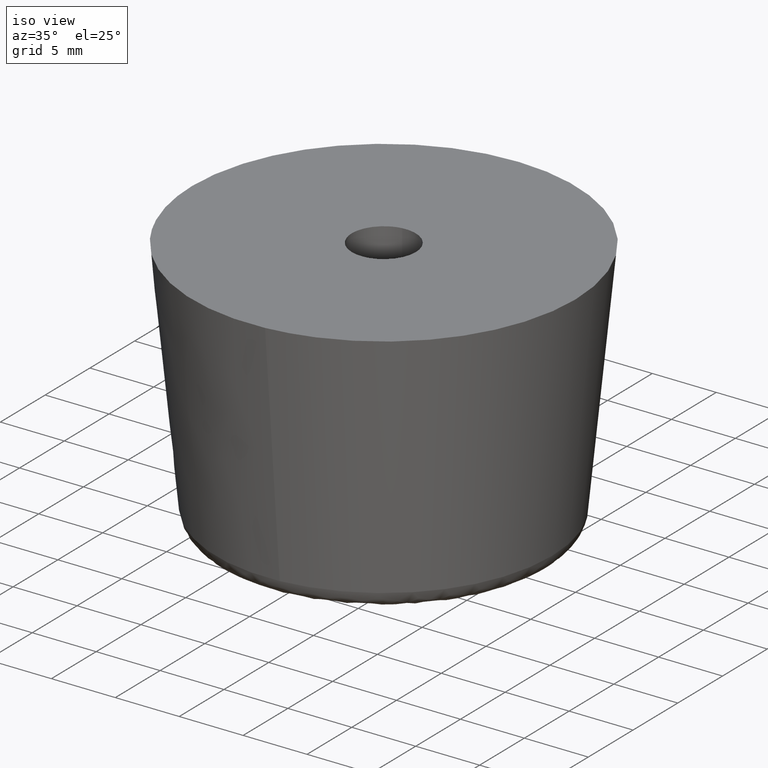
[diagram: clean part render]
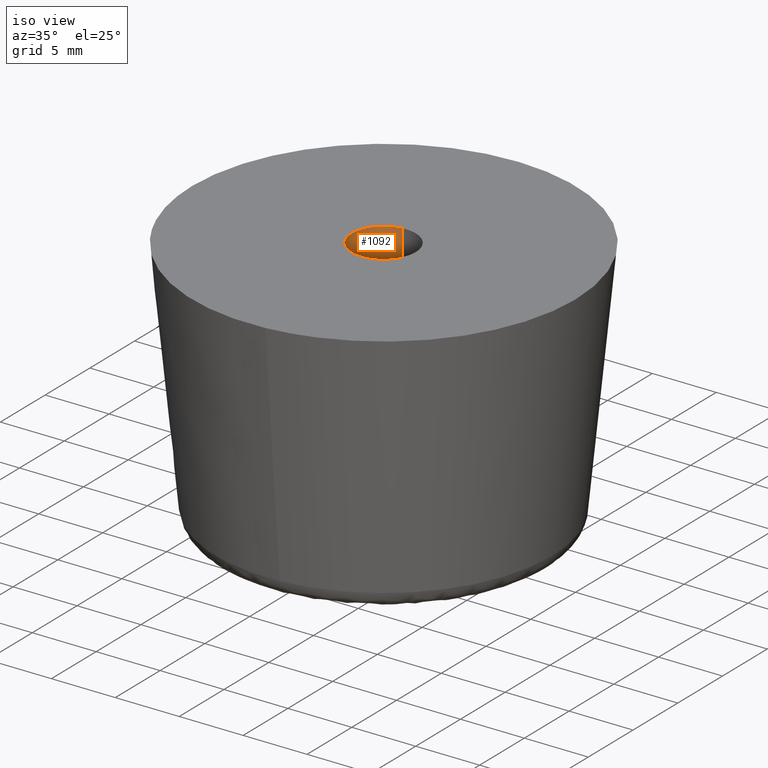
[diagram: same view with one face highlighted and labeled with its STEP entity id]
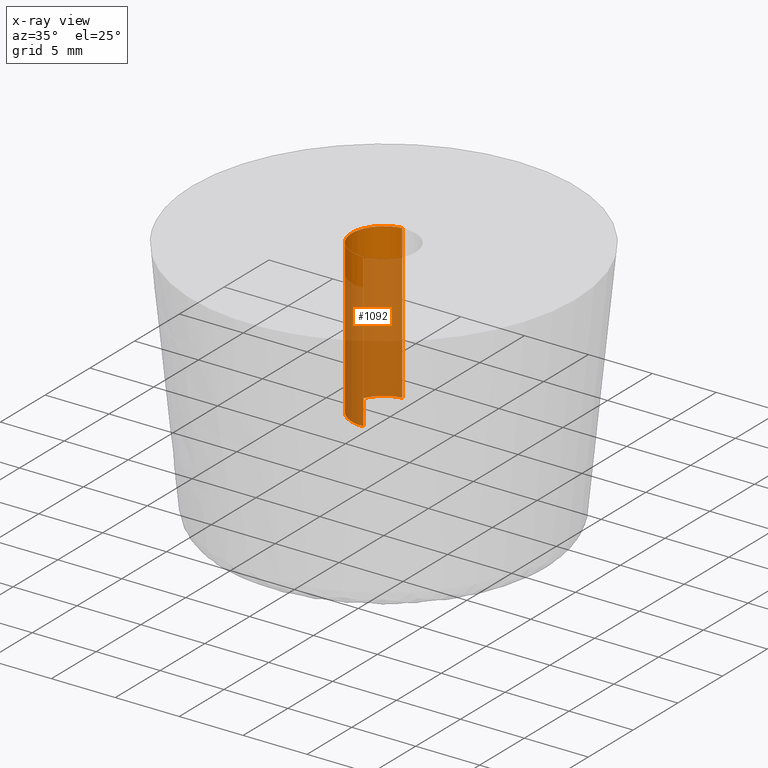
[diagram: x-ray of the same camera — body ghosted, the highlighted face saturated]
A machine part, iso view. The second image highlights one B-rep face of the part: STEP entity #1092.
The next image is the same camera in x-ray: the body ghosted, the highlighted face saturated — about 78% of this face is hidden behind the body in this view.
In plain terms, the highlighted face is a freeform B-spline surface patch.
Its self-contained STEP definition (entity closure, byte-faithful):
#929=CARTESIAN_POINT('',(-0.295085586665474,2.482523815906363,20.0));
#930=VERTEX_POINT('',#929);
#948=CARTESIAN_POINT('',(-0.295085586665474,2.482523815906363,8.0));
#949=VERTEX_POINT('',#948);
#950=CARTESIAN_POINT('',(-0.295085586665474,2.482523815906363,20.0));
#951=CARTESIAN_POINT('',(-0.295085586665474,2.482523815906363,8.0));
#952=QUASI_UNIFORM_CURVE('',1,(#950,#951),.UNSPECIFIED.,.F.,.U.);
#953=EDGE_CURVE('',#930,#949,#952,.T.);
#972=CARTESIAN_POINT('',(0.152621348888177,-2.495336996051546,8.0));
#973=VERTEX_POINT('',#972);
#987=CARTESIAN_POINT('',(0.152621348888177,-2.495336996051545,20.0));
#988=VERTEX_POINT('',#987);
#989=CARTESIAN_POINT('',(0.152621348888177,-2.495336996051545,20.0));
#990=CARTESIAN_POINT('',(0.152621348888177,-2.495336996051546,8.0));
#991=QUASI_UNIFORM_CURVE('',1,(#989,#990),.UNSPECIFIED.,.F.,.U.);
#992=EDGE_CURVE('',#988,#973,#991,.T.);
#1010=CARTESIAN_POINT('',(0.152621348837143,-2.495336996054667,20.300000000000001));
#1011=CARTESIAN_POINT('',(-2.342715647217524,-2.647958344891809,20.300000000000008));
#1012=CARTESIAN_POINT('',(-2.495336996054667,-0.152621348837143,20.300000000000001));
#1013=CARTESIAN_POINT('',(-2.639465491831319,2.203858727098751,20.300000000000001));
#1014=CARTESIAN_POINT('',(-0.295085586641896,2.482523815909166,20.300000000000008));
#1015=CARTESIAN_POINT('',(0.152621348837143,-2.495336996054667,7.692499999999999));
#1016=CARTESIAN_POINT('',(-2.342715647217524,-2.647958344891809,7.692499999999999));
#1017=CARTESIAN_POINT('',(-2.495336996054667,-0.152621348837143,7.692499999999999));
#1018=CARTESIAN_POINT('',(-2.639465491831319,2.203858727098751,7.692499999999999));
#1019=CARTESIAN_POINT('',(-0.295085586641896,2.482523815909166,7.692500000000000));
#1027=(BOUNDED_SURFACE()B_SPLINE_SURFACE(2,1,((#1010,#1015),(#1011,#1016),(#1012,#1017),(#1013,#1018),(#1014,#1019)),.UNSPECIFIED.,.F.,.F.,.U.)B_SPLINE_SURFACE_WITH_KNOTS((3,2,3),(2,2),(0.0,4.142135623730949,8.118585822512660),(0.0,12.607500000000011),.UNSPECIFIED.)GEOMETRIC_REPRESENTATION_ITEM()RATIONAL_B_SPLINE_SURFACE(((1.0,1.0),(0.707106781186548,0.707106781186548),(1.0,1.0),(0.718822509939086,0.718822509939086),(0.977505800795127,0.977505800795127)))REPRESENTATION_ITEM('')SURFACE());
#1028=CARTESIAN_POINT('',(-2.500000000000000,0.0,20.0));
#1029=VERTEX_POINT('',#1028);
#1030=CARTESIAN_POINT('',(-2.500000000000000,0.0,20.0));
#1031=CARTESIAN_POINT('',(-2.500000000000000,2.220436314835945,19.999999999999996));
#1032=CARTESIAN_POINT('',(-0.295085586665474,2.482523815906363,19.999999999999996));
#1040=(BOUNDED_CURVE()B_SPLINE_CURVE(2,(#1030,#1031,#1032),.UNSPECIFIED.,.F.,.U.)B_SPLINE_CURVE_WITH_KNOTS((3,3),(0.0,0.229562473512434),.UNSPECIFIED.)CURVE()GEOMETRIC_REPRESENTATION_ITEM()RATIONAL_B_SPLINE_CURVE((1.0,0.731050832856661,0.956026754181594))REPRESENTATION_ITEM(''));
#1041=EDGE_CURVE('',#1029,#930,#1040,.T.);
#1042=ORIENTED_EDGE('',*,*,#1041,.F.);
#1043=CARTESIAN_POINT('',(0.152621348888177,-2.495336996051545,20.0));
#1044=CARTESIAN_POINT('',(0.076381908297649,-2.500000000000000,19.999999999999996));
#1045=CARTESIAN_POINT('',(0.0,-2.500000000000000,20.0));
#1046=CARTESIAN_POINT('',(-2.500000000000000,-2.500000000000000,19.999999999999996));
#1047=CARTESIAN_POINT('',(-2.500000000000000,0.0,20.0));
#1055=(BOUNDED_CURVE()B_SPLINE_CURVE(2,(#1043,#1044,#1045,#1046,#1047),.UNSPECIFIED.,.F.,.U.)B_SPLINE_CURVE_WITH_KNOTS((3,2,3),(0.739332962234911,0.750000000000000,1.0),.UNSPECIFIED.)CURVE()GEOMETRIC_REPRESENTATION_ITEM()RATIONAL_B_SPLINE_CURVE((0.976072041658075,0.987502787895113,1.0,0.707106781186548,1.0))REPRESENTATION_ITEM(''));
#1056=EDGE_CURVE('',#988,#1029,#1055,.T.);
#1057=ORIENTED_EDGE('',*,*,#1056,.F.);
#1058=ORIENTED_EDGE('',*,*,#992,.T.);
#1059=CARTESIAN_POINT('',(-2.500000000000000,0.0,8.0));
#1060=VERTEX_POINT('',#1059);
#1061=CARTESIAN_POINT('',(0.152621348888177,-2.495336996051546,8.0));
#1062=CARTESIAN_POINT('',(0.076381908297650,-2.500000000000000,8.0));
#1063=CARTESIAN_POINT('',(0.0,-2.500000000000000,8.0));
#1064=CARTESIAN_POINT('',(-2.500000000000000,-2.500000000000000,8.0));
#1065=CARTESIAN_POINT('',(-2.500000000000000,0.0,8.0));
#1073=(BOUNDED_CURVE()B_SPLINE_CURVE(2,(#1061,#1062,#1063,#1064,#1065),.UNSPECIFIED.,.F.,.U.)B_SPLINE_CURVE_WITH_KNOTS((3,2,3),(0.739332962234910,0.750000000000000,1.0),.UNSPECIFIED.)CURVE()GEOMETRIC_REPRESENTATION_ITEM()RATIONAL_B_SPLINE_CURVE((0.976072041658075,0.987502787895113,1.0,0.707106781186548,1.0))REPRESENTATION_ITEM(''));
#1074=EDGE_CURVE('',#973,#1060,#1073,.T.);
#1075=ORIENTED_EDGE('',*,*,#1074,.T.);
#1076=CARTESIAN_POINT('',(-2.500000000000000,0.0,8.0));
#1077=CARTESIAN_POINT('',(-2.500000000000000,2.220436314835945,8.0));
#1078=CARTESIAN_POINT('',(-0.295085586665474,2.482523815906363,8.0));
#1086=(BOUNDED_CURVE()B_SPLINE_CURVE(2,(#1076,#1077,#1078),.UNSPECIFIED.,.F.,.U.)B_SPLINE_CURVE_WITH_KNOTS((3,3),(0.0,0.229562473512434),.UNSPECIFIED.)CURVE()GEOMETRIC_REPRESENTATION_ITEM()RATIONAL_B_SPLINE_CURVE((1.0,0.731050832856661,0.956026754181594))REPRESENTATION_ITEM(''));
#1087=EDGE_CURVE('',#1060,#949,#1086,.T.);
#1088=ORIENTED_EDGE('',*,*,#1087,.T.);
#1089=ORIENTED_EDGE('',*,*,#953,.F.);
#1090=EDGE_LOOP('',(#1042,#1057,#1058,#1075,#1088,#1089));
#1091=FACE_OUTER_BOUND('',#1090,.T.);
#1092=ADVANCED_FACE('',(#1091),#1027,.F.);